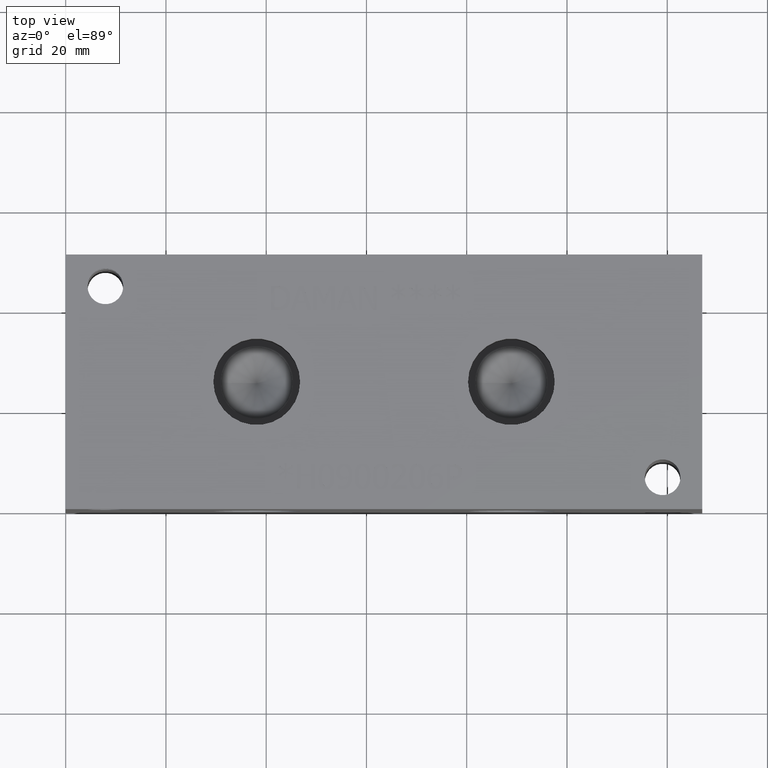
[diagram: clean part render]
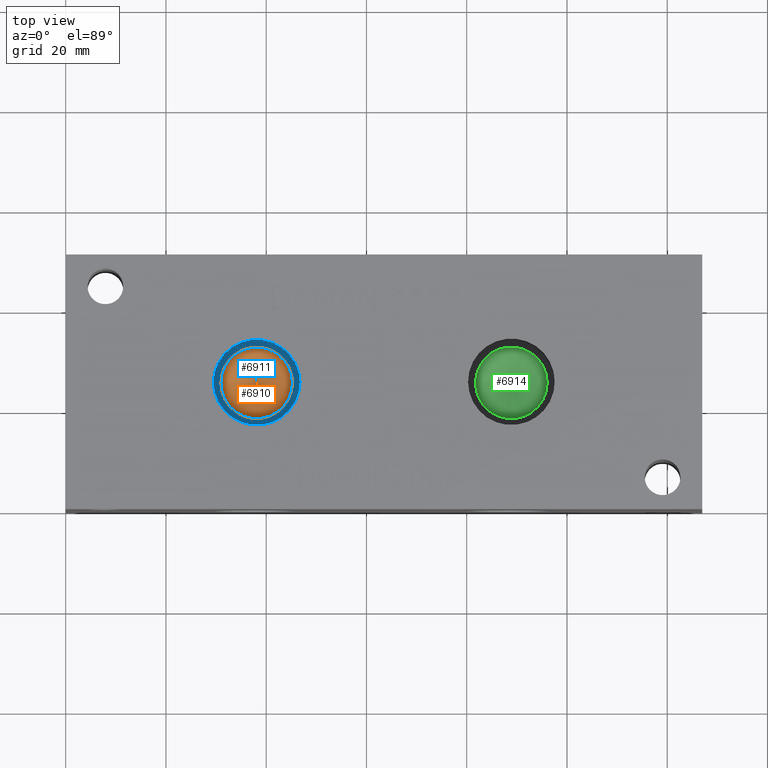
[diagram: same view with three faces highlighted in distinct colors, each labeled with its STEP entity id]
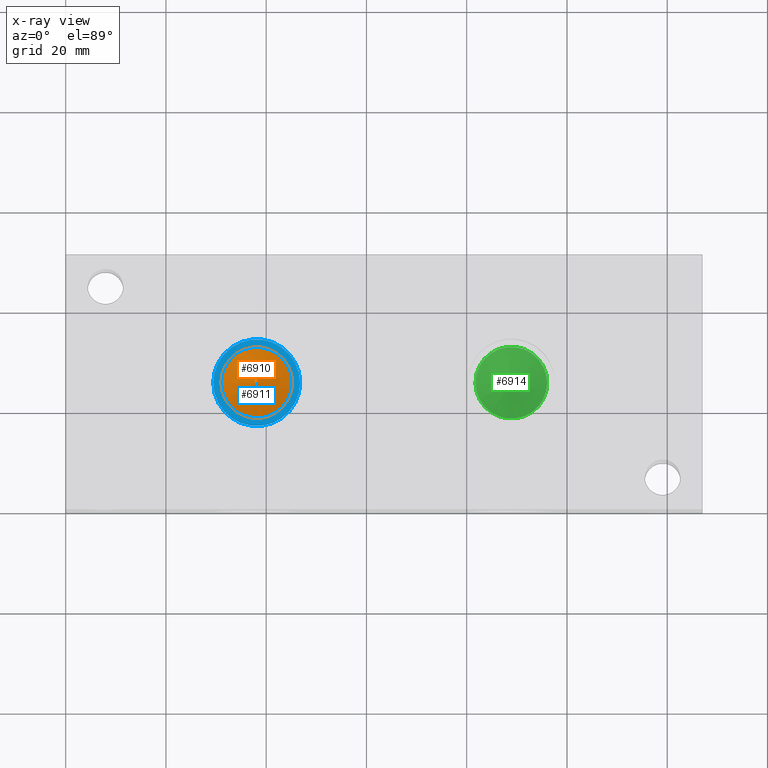
[diagram: x-ray of the same camera — body ghosted, the three highlighted faces saturated]
A machine part, top view with three faces highlighted in distinct colors.
The next image is the same camera in x-ray (body ghosted, the three faces saturated) — at least one of them is partly hidden behind the body in this view.
Their STEP definitions:

[orange] entity #6910 — the highlighted conical surface has half-angle 60 deg.
#44=CONICAL_SURFACE('',#7200,3.57505,1.0471975511966);
#78=CIRCLE('',#7201,7.1501);
#79=CIRCLE('',#7202,7.1501);
#692=FACE_OUTER_BOUND('',#1078,.T.);
#1078=EDGE_LOOP('',(#6053,#6054,#6055,#6056));
#1758=LINE('',#11832,#2422);
#2422=VECTOR('',#8404,3.57505);
#3276=VERTEX_POINT('',#11828);
#3277=VERTEX_POINT('',#11829);
#3278=VERTEX_POINT('',#11831);
#4216=EDGE_CURVE('',#3276,#3277,#78,.T.);
#4217=EDGE_CURVE('',#3277,#3278,#1758,.T.);
#4218=EDGE_CURVE('',#3277,#3276,#79,.T.);
#6053=ORIENTED_EDGE('',*,*,#4216,.T.);
#6054=ORIENTED_EDGE('',*,*,#4217,.T.);
#6055=ORIENTED_EDGE('',*,*,#4217,.F.);
#6056=ORIENTED_EDGE('',*,*,#4218,.T.);
#6910=ADVANCED_FACE('',(#692),#44,.F.);
#7200=AXIS2_PLACEMENT_3D('',#11827,#8400,#8401);
#7201=AXIS2_PLACEMENT_3D('',#11830,#8402,#8403);
#7202=AXIS2_PLACEMENT_3D('',#11833,#8405,#8406);
#8400=DIRECTION('center_axis',(0.,0.,1.));
#8401=DIRECTION('ref_axis',(1.,0.,0.));
#8402=DIRECTION('center_axis',(0.,0.,1.));
#8403=DIRECTION('ref_axis',(1.,0.,0.));
#8404=DIRECTION('',(0.866025403784439,1.06057523872491E-16,-0.5));
#8405=DIRECTION('center_axis',(0.,0.,1.));
#8406=DIRECTION('ref_axis',(1.,0.,0.));
#11827=CARTESIAN_POINT('Origin',(38.1,25.4,36.5883339201336));
#11828=CARTESIAN_POINT('',(45.2501,25.4,38.65239));
#11829=CARTESIAN_POINT('',(30.9499,25.4,38.65239));
#11830=CARTESIAN_POINT('Origin',(38.1,25.4,38.65239));
#11831=CARTESIAN_POINT('',(38.1,25.4,34.5242778402673));
#11832=CARTESIAN_POINT('',(34.52495,25.4,36.5883339201336));
#11833=CARTESIAN_POINT('Origin',(38.1,25.4,38.65239));

[blue] entity #6911 — the highlighted planar face has unit normal (0, 0, 1).
#80=CIRCLE('',#7204,8.6487);
#81=CIRCLE('',#7205,8.6487);
#82=CIRCLE('',#7206,7.1501);
#137=FACE_BOUND('',#1080,.T.);
#353=PLANE('',#7203);
#693=FACE_OUTER_BOUND('',#1079,.T.);
#1079=EDGE_LOOP('',(#6057,#6058));
#1080=EDGE_LOOP('',(#6059));
#3279=VERTEX_POINT('',#11835);
#3280=VERTEX_POINT('',#11836);
#3281=VERTEX_POINT('',#11839);
#4219=EDGE_CURVE('',#3279,#3280,#80,.T.);
#4220=EDGE_CURVE('',#3280,#3279,#81,.T.);
#4221=EDGE_CURVE('',#3281,#3281,#82,.T.);
#6057=ORIENTED_EDGE('',*,*,#4219,.T.);
#6058=ORIENTED_EDGE('',*,*,#4220,.T.);
#6059=ORIENTED_EDGE('',*,*,#4221,.F.);
#6911=ADVANCED_FACE('',(#693,#137),#353,.T.);
#7203=AXIS2_PLACEMENT_3D('',#11834,#8407,#8408);
#7204=AXIS2_PLACEMENT_3D('',#11837,#8409,#8410);
#7205=AXIS2_PLACEMENT_3D('',#11838,#8411,#8412);
#7206=AXIS2_PLACEMENT_3D('',#11840,#8413,#8414);
#8407=DIRECTION('center_axis',(0.,0.,1.));
#8408=DIRECTION('ref_axis',(1.,0.,0.));
#8409=DIRECTION('center_axis',(0.,0.,1.));
#8410=DIRECTION('ref_axis',(1.,0.,0.));
#8411=DIRECTION('center_axis',(0.,0.,1.));
#8412=DIRECTION('ref_axis',(1.,0.,0.));
#8413=DIRECTION('center_axis',(0.,0.,1.));
#8414=DIRECTION('ref_axis',(1.,0.,0.));
#11834=CARTESIAN_POINT('Origin',(38.1,25.4,39.0652));
#11835=CARTESIAN_POINT('',(46.7487,25.4,39.0652));
#11836=CARTESIAN_POINT('',(29.4513,25.4,39.0652));
#11837=CARTESIAN_POINT('Origin',(38.1,25.4,39.0652));
#11838=CARTESIAN_POINT('Origin',(38.1,25.4,39.0652));
#11839=CARTESIAN_POINT('',(30.9499,25.4,39.0652));
#11840=CARTESIAN_POINT('Origin',(38.1,25.4,39.0652));

[green] entity #6914 — the highlighted conical surface has half-angle 60 deg.
#45=CONICAL_SURFACE('',#7209,3.57505,1.0471975511966);
#83=CIRCLE('',#7210,7.1501);
#84=CIRCLE('',#7211,7.1501);
#696=FACE_OUTER_BOUND('',#1083,.T.);
#1083=EDGE_LOOP('',(#6071,#6072,#6073,#6074));
#1761=LINE('',#11850,#2425);
#2425=VECTOR('',#8425,3.57505);
#3282=VERTEX_POINT('',#11846);
#3283=VERTEX_POINT('',#11847);
#3284=VERTEX_POINT('',#11849);
#4224=EDGE_CURVE('',#3282,#3283,#83,.T.);
#4225=EDGE_CURVE('',#3283,#3284,#1761,.T.);
#4226=EDGE_CURVE('',#3283,#3282,#84,.T.);
#6071=ORIENTED_EDGE('',*,*,#4224,.T.);
#6072=ORIENTED_EDGE('',*,*,#4225,.T.);
#6073=ORIENTED_EDGE('',*,*,#4225,.F.);
#6074=ORIENTED_EDGE('',*,*,#4226,.T.);
#6914=ADVANCED_FACE('',(#696),#45,.F.);
#7209=AXIS2_PLACEMENT_3D('',#11845,#8421,#8422);
#7210=AXIS2_PLACEMENT_3D('',#11848,#8423,#8424);
#7211=AXIS2_PLACEMENT_3D('',#11851,#8426,#8427);
#8421=DIRECTION('center_axis',(0.,0.,1.));
#8422=DIRECTION('ref_axis',(1.,0.,0.));
#8423=DIRECTION('center_axis',(0.,0.,1.));
#8424=DIRECTION('ref_axis',(1.,0.,0.));
#8425=DIRECTION('',(0.866025403784439,1.06057523872491E-16,-0.5));
#8426=DIRECTION('center_axis',(0.,0.,1.));
#8427=DIRECTION('ref_axis',(1.,0.,0.));
#11845=CARTESIAN_POINT('Origin',(88.9,25.4,36.5883339201336));
#11846=CARTESIAN_POINT('',(96.0501,25.4,38.65239));
#11847=CARTESIAN_POINT('',(81.7499,25.4,38.65239));
#11848=CARTESIAN_POINT('Origin',(88.9,25.4,38.65239));
#11849=CARTESIAN_POINT('',(88.9,25.4,34.5242778402673));
#11850=CARTESIAN_POINT('',(85.32495,25.4,36.5883339201336));
#11851=CARTESIAN_POINT('Origin',(88.9,25.4,38.65239));